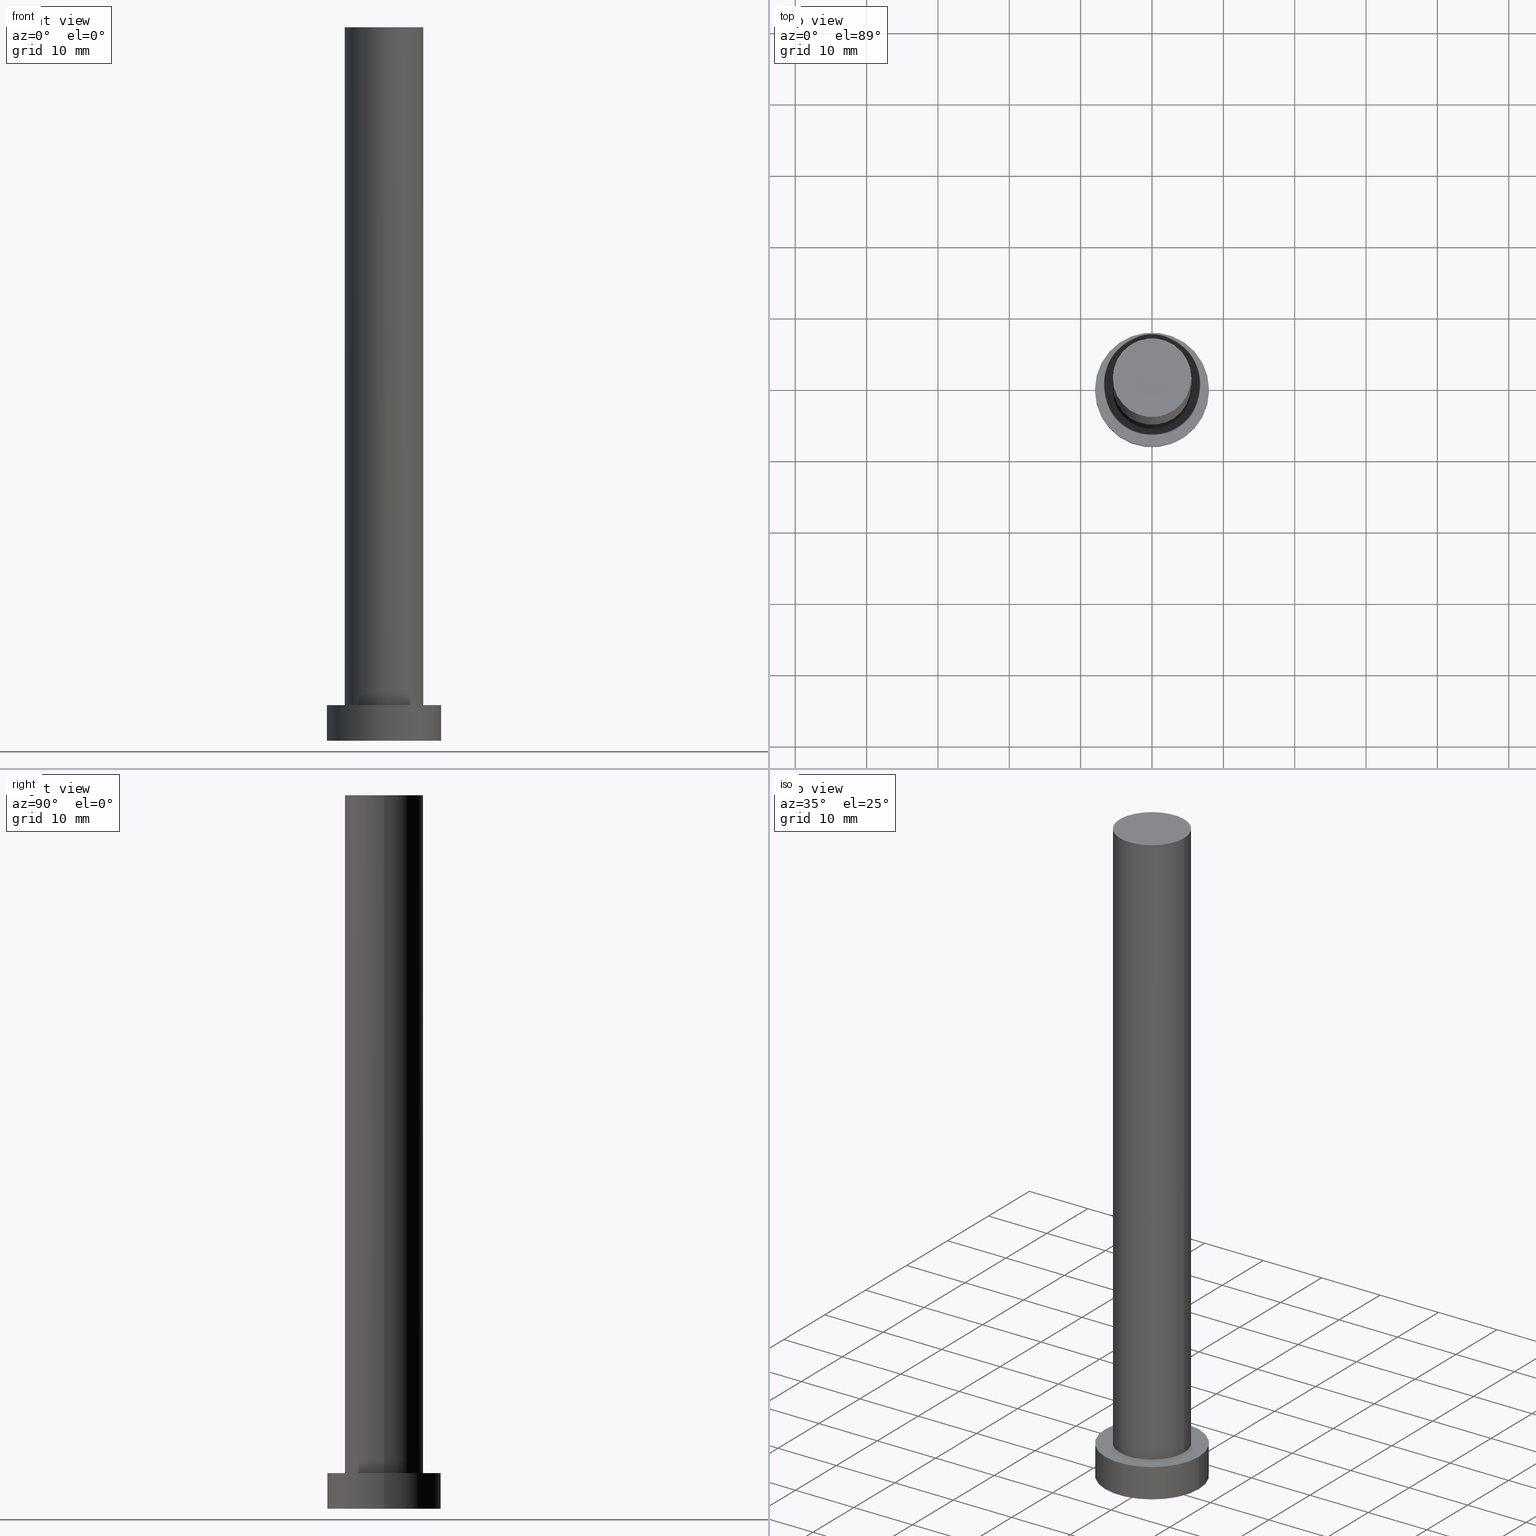
[diagram: canonical four-view strip — front | top / right | iso, engineering-drawing reading convention]
A machine part, canonical four-view strip (front | top / right | iso — engineering-drawing reading convention). The complete STEP part file that produces these views, byte-faithful:
ISO-10303-21;
HEADER;
FILE_DESCRIPTION (( 'STEP AP203' ),
    '1' );
FILE_NAME ('200e.STEP',
    '2023-02-12T10:58:04',
    ( '' ),
    ( '' ),
    'SwSTEP 2.0',
    'SolidWorks 2019',
    '' );
FILE_SCHEMA (( 'CONFIG_CONTROL_DESIGN' ));
ENDSEC;

DATA;
#1 = ADVANCED_FACE ( 'NONE', ( #114 ), #132, .F. ) ;
#2 = EDGE_LOOP ( 'NONE', ( #249, #48 ) ) ;
#3 = AXIS2_PLACEMENT_3D ( 'NONE', #136, #37, #176 ) ;
#4 = ORIENTED_EDGE ( 'NONE', *, *, #247, .F. ) ;
#5 = EDGE_LOOP ( 'NONE', ( #209, #187, #183, #7 ) ) ;
#6 = CARTESIAN_POINT ( 'NONE',  ( 8.000000000000000000, 9.797174393178825657E-16, 0.000000000000000000 ) ) ;
#7 = ORIENTED_EDGE ( 'NONE', *, *, #234, .T. ) ;
#8 = CARTESIAN_POINT ( 'NONE',  ( 0.000000000000000000, 0.000000000000000000, 5.000000000000000000 ) ) ;
#9 = CIRCLE ( 'NONE', #99, 5.500000000000000000 ) ;
#10 = CARTESIAN_POINT ( 'NONE',  ( 0.000000000000000000, 0.000000000000000000, 5.000000000000000000 ) ) ;
#11 = DATE_AND_TIME ( #161, #213 ) ;
#12 = ADVANCED_FACE ( 'NONE', ( #171 ), #29, .T. ) ;
#13 = CARTESIAN_POINT ( 'NONE',  ( 0.000000000000000000, 0.000000000000000000, 0.000000000000000000 ) ) ;
#14 = CARTESIAN_POINT ( 'NONE',  ( -8.000000000000000000, 0.000000000000000000, 5.000000000000000000 ) ) ;
#15 = DIRECTION ( 'NONE',  ( -0.000000000000000000, -0.000000000000000000, -1.000000000000000000 ) ) ;
#16 = PERSON_AND_ORGANIZATION_ROLE ( 'creator' ) ;
#17 = DIRECTION ( 'NONE',  ( -0.000000000000000000, -0.000000000000000000, -1.000000000000000000 ) ) ;
#18 = DIRECTION ( 'NONE',  ( 0.000000000000000000, 0.000000000000000000, 1.000000000000000000 ) ) ;
#19 = CC_DESIGN_APPROVAL ( #243, ( #63 ) ) ;
#20 = ADVANCED_FACE ( 'NONE', ( #116 ), #162, .T. ) ;
#21 = EDGE_LOOP ( 'NONE', ( #128, #231 ) ) ;
#22 = AXIS2_PLACEMENT_3D ( 'NONE', #217, #32, #120 ) ;
#23 = EDGE_CURVE ( 'NONE', #61, #88, #68, .T. ) ;
#24 = LOCAL_TIME ( 11, 58, 4.000000000000000000, #71 ) ;
#25 = FACE_OUTER_BOUND ( 'NONE', #102, .T. ) ;
#26 = ORIENTED_EDGE ( 'NONE', *, *, #117, .T. ) ;
#27 = DIRECTION ( 'NONE',  ( 0.000000000000000000, 0.000000000000000000, 1.000000000000000000 ) ) ;
#28 = EDGE_CURVE ( 'NONE', #80, #233, #57, .T. ) ;
#29 = CYLINDRICAL_SURFACE ( 'NONE', #153, 8.000000000000000000 ) ;
#30 = APPROVAL ( #172, 'NEUR�EN�' ) ;
#31 = CARTESIAN_POINT ( 'NONE',  ( 0.000000000000000000, 0.000000000000000000, 100.0000000000000000 ) ) ;
#32 = DIRECTION ( 'NONE',  ( 0.000000000000000000, 0.000000000000000000, 1.000000000000000000 ) ) ;
#33 = DIRECTION ( 'NONE',  ( -0.000000000000000000, -0.000000000000000000, -1.000000000000000000 ) ) ;
#34 = DIRECTION ( 'NONE',  ( -1.000000000000000000, 0.000000000000000000, 0.000000000000000000 ) ) ;
#35 = VECTOR ( 'NONE', #47, 1000.000000000000000 ) ;
#36 = CARTESIAN_POINT ( 'NONE',  ( 0.000000000000000000, 0.000000000000000000, 100.0000000000000000 ) ) ;
#37 = DIRECTION ( 'NONE',  ( 0.000000000000000000, 0.000000000000000000, 1.000000000000000000 ) ) ;
#38 = FACE_OUTER_BOUND ( 'NONE', #2, .T. ) ;
#39 = PERSON_AND_ORGANIZATION ( #44, #148 ) ;
#40 = CARTESIAN_POINT ( 'NONE',  ( 0.000000000000000000, 0.000000000000000000, 0.000000000000000000 ) ) ;
#41 = CARTESIAN_POINT ( 'NONE',  ( -5.500000000000000000, 0.000000000000000000, 5.000000000000000000 ) ) ;
#42 = VECTOR ( 'NONE', #15, 1000.000000000000000 ) ;
#43 = ORIENTED_EDGE ( 'NONE', *, *, #103, .T. ) ;
#44 = PERSON ( 'NEUR�EN�', 'NEUR�EN�', 'NEUR�EN�', ('NEUR�EN�'), ('NEUR�EN�'), ('NEUR�EN�') ) ;
#45 = FACE_OUTER_BOUND ( 'NONE', #110, .T. ) ;
#46 = DIRECTION ( 'NONE',  ( 1.000000000000000000, 0.000000000000000000, 0.000000000000000000 ) ) ;
#47 = DIRECTION ( 'NONE',  ( -0.000000000000000000, -0.000000000000000000, -1.000000000000000000 ) ) ;
#48 = ORIENTED_EDGE ( 'NONE', *, *, #54, .T. ) ;
#49 = APPROVAL_STATUS ( 'not_yet_approved' ) ;
#50 = DATE_AND_TIME ( #157, #24 ) ;
#51 = APPROVAL_PERSON_ORGANIZATION ( #240, #60, #100 ) ;
#52 = PERSON_AND_ORGANIZATION ( #44, #148 ) ;
#53 = DIRECTION ( 'NONE',  ( -1.000000000000000000, 0.000000000000000000, 0.000000000000000000 ) ) ;
#54 = EDGE_CURVE ( 'NONE', #145, #144, #78, .T. ) ;
#55 = DIRECTION ( 'NONE',  ( -0.000000000000000000, -0.000000000000000000, -1.000000000000000000 ) ) ;
#56 = CARTESIAN_POINT ( 'NONE',  ( 0.000000000000000000, 0.000000000000000000, 0.000000000000000000 ) ) ;
#57 = CIRCLE ( 'NONE', #236, 8.000000000000000000 ) ;
#58 = CARTESIAN_POINT ( 'NONE',  ( 8.000000000000000000, 9.797174393178825657E-16, 5.000000000000000000 ) ) ;
#59 = LOCAL_TIME ( 11, 58, 4.000000000000000000, #196 ) ;
#60 = APPROVAL ( #79, 'NEUR�EN�' ) ;
#61 = VERTEX_POINT ( 'NONE', #14 ) ;
#62 = ORIENTED_EDGE ( 'NONE', *, *, #237, .T. ) ;
#63 = PRODUCT_DEFINITION_FORMATION_WITH_SPECIFIED_SOURCE ( 'LIBOVOLN�', '', #97, .NOT_KNOWN. ) ;
#64 = APPLICATION_PROTOCOL_DEFINITION ( 'international standard', 'config_control_design', 1994, #84 ) ;
#65 = DIRECTION ( 'NONE',  ( 1.000000000000000000, 0.000000000000000000, 0.000000000000000000 ) ) ;
#66 = PERSON_AND_ORGANIZATION ( #44, #148 ) ;
#67 = DIRECTION ( 'NONE',  ( 0.000000000000000000, 0.000000000000000000, 1.000000000000000000 ) ) ;
#68 = CIRCLE ( 'NONE', #22, 8.000000000000000000 ) ;
#69 = PERSON_AND_ORGANIZATION ( #44, #148 ) ;
#70 =( GEOMETRIC_REPRESENTATION_CONTEXT ( 3 ) GLOBAL_UNCERTAINTY_ASSIGNED_CONTEXT ( ( #137 ) ) GLOBAL_UNIT_ASSIGNED_CONTEXT ( ( #170, #106, #182 ) ) REPRESENTATION_CONTEXT ( 'NONE', 'WORKASPACE' ) );
#71 = COORDINATED_UNIVERSAL_TIME_OFFSET ( 1, 0, .AHEAD. ) ;
#72 = COORDINATED_UNIVERSAL_TIME_OFFSET ( 1, 0, .AHEAD. ) ;
#73 = COORDINATED_UNIVERSAL_TIME_OFFSET ( 1, 0, .AHEAD. ) ;
#74 = CC_DESIGN_PERSON_AND_ORGANIZATION_ASSIGNMENT ( #52, #93, ( #97 ) ) ;
#75 = SHAPE_DEFINITION_REPRESENTATION ( #181, #164 ) ;
#76 = APPROVAL_DATE_TIME ( #220, #243 ) ;
#77 = DIRECTION ( 'NONE',  ( 0.000000000000000000, 0.000000000000000000, 1.000000000000000000 ) ) ;
#78 = CIRCLE ( 'NONE', #229, 5.500000000000000000 ) ;
#79 = APPROVAL_STATUS ( 'not_yet_approved' ) ;
#80 = VERTEX_POINT ( 'NONE', #239 ) ;
#81 = DIRECTION ( 'NONE',  ( -0.000000000000000000, -0.000000000000000000, -1.000000000000000000 ) ) ;
#82 = CYLINDRICAL_SURFACE ( 'NONE', #255, 8.000000000000000000 ) ;
#83 = CIRCLE ( 'NONE', #156, 5.500000000000000000 ) ;
#84 = APPLICATION_CONTEXT ( 'configuration controlled 3d designs of mechanical parts and assemblies' ) ;
#85 = DATE_TIME_ROLE ( 'creation_date' ) ;
#86 = ORIENTED_EDGE ( 'NONE', *, *, #139, .T. ) ;
#87 = DIRECTION ( 'NONE',  ( 1.000000000000000000, 0.000000000000000000, -0.000000000000000000 ) ) ;
#88 = VERTEX_POINT ( 'NONE', #221 ) ;
#89 = AXIS2_PLACEMENT_3D ( 'NONE', #13, #207, #87 ) ;
#90 = AXIS2_PLACEMENT_3D ( 'NONE', #155, #27, #212 ) ;
#91 = PERSON_AND_ORGANIZATION ( #44, #148 ) ;
#92 = DIRECTION ( 'NONE',  ( 0.000000000000000000, 0.000000000000000000, 1.000000000000000000 ) ) ;
#93 = PERSON_AND_ORGANIZATION_ROLE ( 'design_owner' ) ;
#94 = DIRECTION ( 'NONE',  ( 1.000000000000000000, 0.000000000000000000, 0.000000000000000000 ) ) ;
#95 = DATE_AND_TIME ( #163, #59 ) ;
#96 = DIRECTION ( 'NONE',  ( 1.000000000000000000, 0.000000000000000000, 0.000000000000000000 ) ) ;
#97 = PRODUCT ( '200e', '200e', '', ( #111 ) ) ;
#98 = DIRECTION ( 'NONE',  ( 0.000000000000000000, 0.000000000000000000, 1.000000000000000000 ) ) ;
#99 = AXIS2_PLACEMENT_3D ( 'NONE', #105, #202, #46 ) ;
#100 = APPROVAL_ROLE ( '' ) ;
#101 = DIRECTION ( 'NONE',  ( 1.000000000000000000, 0.000000000000000000, 0.000000000000000000 ) ) ;
#102 = EDGE_LOOP ( 'NONE', ( #226, #26, #43, #227 ) ) ;
#103 = EDGE_CURVE ( 'NONE', #233, #80, #228, .T. ) ;
#104 = VECTOR ( 'NONE', #81, 1000.000000000000000 ) ;
#105 = CARTESIAN_POINT ( 'NONE',  ( 0.000000000000000000, 0.000000000000000000, 5.000000000000000000 ) ) ;
#106 =( NAMED_UNIT ( * ) PLANE_ANGLE_UNIT ( ) SI_UNIT ( $, .RADIAN. ) );
#107 = ADVANCED_FACE ( 'NONE', ( #45 ), #177, .T. ) ;
#108 = CARTESIAN_POINT ( 'NONE',  ( -8.000000000000000000, 0.000000000000000000, 5.000000000000000000 ) ) ;
#109 = CIRCLE ( 'NONE', #174, 8.000000000000000000 ) ;
#110 = EDGE_LOOP ( 'NONE', ( #168, #62, #115, #4 ) ) ;
#111 = MECHANICAL_CONTEXT ( 'NONE', #84, 'mechanical' ) ;
#112 = AXIS2_PLACEMENT_3D ( 'NONE', #241, #18, #94 ) ;
#113 = COORDINATED_UNIVERSAL_TIME_OFFSET ( 1, 0, .AHEAD. ) ;
#114 = FACE_OUTER_BOUND ( 'NONE', #21, .T. ) ;
#115 = ORIENTED_EDGE ( 'NONE', *, *, #195, .T. ) ;
#116 = FACE_OUTER_BOUND ( 'NONE', #5, .T. ) ;
#117 = EDGE_CURVE ( 'NONE', #88, #233, #222, .T. ) ;
#118 = CARTESIAN_POINT ( 'NONE',  ( 0.000000000000000000, 0.000000000000000000, 100.0000000000000000 ) ) ;
#119 = PERSON_AND_ORGANIZATION_ROLE ( 'classification_officer' ) ;
#120 = DIRECTION ( 'NONE',  ( 1.000000000000000000, 0.000000000000000000, 0.000000000000000000 ) ) ;
#121 = CC_DESIGN_APPROVAL ( #60, ( #125 ) ) ;
#122 = DIRECTION ( 'NONE',  ( 0.000000000000000000, 0.000000000000000000, 1.000000000000000000 ) ) ;
#123 = SECURITY_CLASSIFICATION_LEVEL ( 'unclassified' ) ;
#124 = AXIS2_PLACEMENT_3D ( 'NONE', #31, #55, #34 ) ;
#125 = SECURITY_CLASSIFICATION ( '', '', #123 ) ;
#126 = PLANE ( 'NONE',  #3 ) ;
#127 = ADVANCED_FACE ( 'NONE', ( #38 ), #198, .T. ) ;
#128 = ORIENTED_EDGE ( 'NONE', *, *, #28, .F. ) ;
#129 = VERTEX_POINT ( 'NONE', #199 ) ;
#130 = CC_DESIGN_APPROVAL ( #30, ( #179 ) ) ;
#131 = CARTESIAN_POINT ( 'NONE',  ( 5.500000000000000000, 6.735557395310442023E-16, 100.0000000000000000 ) ) ;
#132 = PLANE ( 'NONE',  #89 ) ;
#133 = EDGE_LOOP ( 'NONE', ( #167, #151 ) ) ;
#134 = APPROVAL_ROLE ( '' ) ;
#135 = DIRECTION ( 'NONE',  ( 0.000000000000000000, 0.000000000000000000, 1.000000000000000000 ) ) ;
#136 = CARTESIAN_POINT ( 'NONE',  ( 0.000000000000000000, 0.000000000000000000, 5.000000000000000000 ) ) ;
#137 = UNCERTAINTY_MEASURE_WITH_UNIT (LENGTH_MEASURE( 1.000000000000000082E-05 ), #170, 'distance_accuracy_value', 'NONE');
#138 = APPROVAL_PERSON_ORGANIZATION ( #66, #243, #134 ) ;
#139 = EDGE_CURVE ( 'NONE', #88, #61, #109, .T. ) ;
#140 = FACE_OUTER_BOUND ( 'NONE', #158, .T. ) ;
#141 = CARTESIAN_POINT ( 'NONE',  ( 0.000000000000000000, 0.000000000000000000, 100.0000000000000000 ) ) ;
#142 = DIRECTION ( 'NONE',  ( -1.000000000000000000, 0.000000000000000000, 0.000000000000000000 ) ) ;
#143 = CC_DESIGN_SECURITY_CLASSIFICATION ( #125, ( #63 ) ) ;
#144 = VERTEX_POINT ( 'NONE', #147 ) ;
#145 = VERTEX_POINT ( 'NONE', #230 ) ;
#146 = DIRECTION ( 'NONE',  ( -0.000000000000000000, -0.000000000000000000, -1.000000000000000000 ) ) ;
#147 = CARTESIAN_POINT ( 'NONE',  ( -5.500000000000000000, 0.000000000000000000, 100.0000000000000000 ) ) ;
#148 = ORGANIZATION ( 'NEUR�EN�', 'NEUR�EN�', '' ) ;
#149 = ORIENTED_EDGE ( 'NONE', *, *, #28, .T. ) ;
#150 = ORIENTED_EDGE ( 'NONE', *, *, #23, .T. ) ;
#151 = ORIENTED_EDGE ( 'NONE', *, *, #195, .F. ) ;
#152 = EDGE_CURVE ( 'NONE', #61, #80, #205, .T. ) ;
#153 = AXIS2_PLACEMENT_3D ( 'NONE', #8, #190, #194 ) ;
#154 = APPLICATION_CONTEXT ( 'configuration controlled 3d designs of mechanical parts and assemblies' ) ;
#155 = CARTESIAN_POINT ( 'NONE',  ( 0.000000000000000000, 0.000000000000000000, 0.000000000000000000 ) ) ;
#156 = AXIS2_PLACEMENT_3D ( 'NONE', #254, #77, #165 ) ;
#157 = CALENDAR_DATE ( 2023, 12, 2 ) ;
#158 = EDGE_LOOP ( 'NONE', ( #150, #86 ) ) ;
#159 = ADVANCED_FACE ( 'NONE', ( #25 ), #82, .T. ) ;
#160 = AXIS2_PLACEMENT_3D ( 'NONE', #40, #92, #101 ) ;
#161 = CALENDAR_DATE ( 2023, 12, 2 ) ;
#162 = CYLINDRICAL_SURFACE ( 'NONE', #191, 5.500000000000000000 ) ;
#163 = CALENDAR_DATE ( 2023, 12, 2 ) ;
#164 = ADVANCED_BREP_SHAPE_REPRESENTATION ( '200e', ( #215, #90 ), #70 ) ;
#165 = DIRECTION ( 'NONE',  ( 1.000000000000000000, 0.000000000000000000, 0.000000000000000000 ) ) ;
#166 = PRODUCT_RELATED_PRODUCT_CATEGORY ( 'detail', '', ( #97 ) ) ;
#167 = ORIENTED_EDGE ( 'NONE', *, *, #234, .F. ) ;
#168 = ORIENTED_EDGE ( 'NONE', *, *, #54, .F. ) ;
#169 = ORIENTED_EDGE ( 'NONE', *, *, #117, .F. ) ;
#170 =( LENGTH_UNIT ( ) NAMED_UNIT ( * ) SI_UNIT ( .MILLI., .METRE. ) );
#171 = FACE_OUTER_BOUND ( 'NONE', #246, .T. ) ;
#172 = APPROVAL_STATUS ( 'not_yet_approved' ) ;
#173 = LOCAL_TIME ( 11, 58, 4.000000000000000000, #113 ) ;
#174 = AXIS2_PLACEMENT_3D ( 'NONE', #200, #67, #65 ) ;
#175 = PERSON_AND_ORGANIZATION_ROLE ( 'design_supplier' ) ;
#176 = DIRECTION ( 'NONE',  ( 1.000000000000000000, 0.000000000000000000, -0.000000000000000000 ) ) ;
#177 = CYLINDRICAL_SURFACE ( 'NONE', #124, 5.500000000000000000 ) ;
#178 = PERSON_AND_ORGANIZATION ( #44, #148 ) ;
#179 = PRODUCT_DEFINITION ( 'NEZN�M�', '', #63, #250 ) ;
#180 = CC_DESIGN_PERSON_AND_ORGANIZATION_ASSIGNMENT ( #178, #175, ( #63 ) ) ;
#181 = PRODUCT_DEFINITION_SHAPE ( 'NONE', 'NONE',  #179 ) ;
#182 =( NAMED_UNIT ( * ) SI_UNIT ( $, .STERADIAN. ) SOLID_ANGLE_UNIT ( ) );
#183 = ORIENTED_EDGE ( 'NONE', *, *, #247, .T. ) ;
#184 = DIRECTION ( 'NONE',  ( 1.000000000000000000, 0.000000000000000000, -0.000000000000000000 ) ) ;
#185 = LINE ( 'NONE', #131, #104 ) ;
#186 = CC_DESIGN_PERSON_AND_ORGANIZATION_ASSIGNMENT ( #253, #119, ( #125 ) ) ;
#187 = ORIENTED_EDGE ( 'NONE', *, *, #189, .F. ) ;
#188 = ADVANCED_FACE ( 'NONE', ( #225, #140 ), #126, .T. ) ;
#189 = EDGE_CURVE ( 'NONE', #144, #145, #210, .T. ) ;
#190 = DIRECTION ( 'NONE',  ( -0.000000000000000000, -0.000000000000000000, -1.000000000000000000 ) ) ;
#191 = AXIS2_PLACEMENT_3D ( 'NONE', #118, #17, #53 ) ;
#192 = APPROVAL_ROLE ( '' ) ;
#193 = CALENDAR_DATE ( 2023, 12, 2 ) ;
#194 = DIRECTION ( 'NONE',  ( -1.000000000000000000, 0.000000000000000000, 0.000000000000000000 ) ) ;
#195 = EDGE_CURVE ( 'NONE', #129, #201, #83, .T. ) ;
#196 = COORDINATED_UNIVERSAL_TIME_OFFSET ( 1, 0, .AHEAD. ) ;
#197 = DIRECTION ( 'NONE',  ( 1.000000000000000000, 0.000000000000000000, 0.000000000000000000 ) ) ;
#198 = PLANE ( 'NONE',  #224 ) ;
#199 = CARTESIAN_POINT ( 'NONE',  ( 5.500000000000000000, 6.735557395310442023E-16, 5.000000000000000000 ) ) ;
#200 = CARTESIAN_POINT ( 'NONE',  ( 0.000000000000000000, 0.000000000000000000, 5.000000000000000000 ) ) ;
#201 = VERTEX_POINT ( 'NONE', #41 ) ;
#202 = DIRECTION ( 'NONE',  ( 0.000000000000000000, 0.000000000000000000, 1.000000000000000000 ) ) ;
#203 = CC_DESIGN_PERSON_AND_ORGANIZATION_ASSIGNMENT ( #39, #214, ( #63 ) ) ;
#204 = LINE ( 'NONE', #242, #248 ) ;
#205 = LINE ( 'NONE', #108, #35 ) ;
#206 = ORIENTED_EDGE ( 'NONE', *, *, #152, .T. ) ;
#207 = DIRECTION ( 'NONE',  ( 0.000000000000000000, 0.000000000000000000, 1.000000000000000000 ) ) ;
#208 = CC_DESIGN_DATE_AND_TIME_ASSIGNMENT ( #11, #85, ( #179 ) ) ;
#209 = ORIENTED_EDGE ( 'NONE', *, *, #237, .F. ) ;
#210 = CIRCLE ( 'NONE', #112, 5.500000000000000000 ) ;
#211 = CC_DESIGN_DATE_AND_TIME_ASSIGNMENT ( #218, #223, ( #125 ) ) ;
#212 = DIRECTION ( 'NONE',  ( 1.000000000000000000, 0.000000000000000000, 0.000000000000000000 ) ) ;
#213 = LOCAL_TIME ( 11, 58, 4.000000000000000000, #72 ) ;
#214 = PERSON_AND_ORGANIZATION_ROLE ( 'creator' ) ;
#215 = MANIFOLD_SOLID_BREP ( 'P�idat vysunut�m3', #244 ) ;
#216 = CC_DESIGN_PERSON_AND_ORGANIZATION_ASSIGNMENT ( #91, #16, ( #179 ) ) ;
#217 = CARTESIAN_POINT ( 'NONE',  ( 0.000000000000000000, 0.000000000000000000, 5.000000000000000000 ) ) ;
#218 = DATE_AND_TIME ( #252, #245 ) ;
#219 = APPROVAL_PERSON_ORGANIZATION ( #69, #30, #192 ) ;
#220 = DATE_AND_TIME ( #193, #173 ) ;
#221 = CARTESIAN_POINT ( 'NONE',  ( 8.000000000000000000, 9.797174393178825657E-16, 5.000000000000000000 ) ) ;
#222 = LINE ( 'NONE', #58, #42 ) ;
#223 = DATE_TIME_ROLE ( 'classification_date' ) ;
#224 = AXIS2_PLACEMENT_3D ( 'NONE', #141, #98, #184 ) ;
#225 = FACE_BOUND ( 'NONE', #133, .T. ) ;
#226 = ORIENTED_EDGE ( 'NONE', *, *, #139, .F. ) ;
#227 = ORIENTED_EDGE ( 'NONE', *, *, #152, .F. ) ;
#228 = CIRCLE ( 'NONE', #160, 8.000000000000000000 ) ;
#229 = AXIS2_PLACEMENT_3D ( 'NONE', #36, #122, #197 ) ;
#230 = CARTESIAN_POINT ( 'NONE',  ( 5.500000000000000000, 6.735557395310442023E-16, 100.0000000000000000 ) ) ;
#231 = ORIENTED_EDGE ( 'NONE', *, *, #103, .F. ) ;
#232 = ORIENTED_EDGE ( 'NONE', *, *, #23, .F. ) ;
#233 = VERTEX_POINT ( 'NONE', #6 ) ;
#234 = EDGE_CURVE ( 'NONE', #201, #129, #9, .T. ) ;
#235 = APPROVAL_DATE_TIME ( #50, #30 ) ;
#236 = AXIS2_PLACEMENT_3D ( 'NONE', #56, #135, #96 ) ;
#237 = EDGE_CURVE ( 'NONE', #145, #129, #185, .T. ) ;
#238 = APPROVAL_DATE_TIME ( #95, #60 ) ;
#239 = CARTESIAN_POINT ( 'NONE',  ( -8.000000000000000000, 0.000000000000000000, 0.000000000000000000 ) ) ;
#240 = PERSON_AND_ORGANIZATION ( #44, #148 ) ;
#241 = CARTESIAN_POINT ( 'NONE',  ( 0.000000000000000000, 0.000000000000000000, 100.0000000000000000 ) ) ;
#242 = CARTESIAN_POINT ( 'NONE',  ( -5.500000000000000000, 0.000000000000000000, 100.0000000000000000 ) ) ;
#243 = APPROVAL ( #49, 'NEUR�EN�' ) ;
#244 = CLOSED_SHELL ( 'NONE', ( #107, #159, #12, #188, #1, #20, #127 ) ) ;
#245 = LOCAL_TIME ( 11, 58, 4.000000000000000000, #73 ) ;
#246 = EDGE_LOOP ( 'NONE', ( #169, #232, #206, #149 ) ) ;
#247 = EDGE_CURVE ( 'NONE', #144, #201, #204, .T. ) ;
#248 = VECTOR ( 'NONE', #146, 1000.000000000000000 ) ;
#249 = ORIENTED_EDGE ( 'NONE', *, *, #189, .T. ) ;
#250 = DESIGN_CONTEXT ( 'detailed design', #154, 'design' ) ;
#251 = APPLICATION_PROTOCOL_DEFINITION ( 'international standard', 'config_control_design', 1994, #154 ) ;
#252 = CALENDAR_DATE ( 2023, 12, 2 ) ;
#253 = PERSON_AND_ORGANIZATION ( #44, #148 ) ;
#254 = CARTESIAN_POINT ( 'NONE',  ( 0.000000000000000000, 0.000000000000000000, 5.000000000000000000 ) ) ;
#255 = AXIS2_PLACEMENT_3D ( 'NONE', #10, #33, #142 ) ;
ENDSEC;
END-ISO-10303-21;
